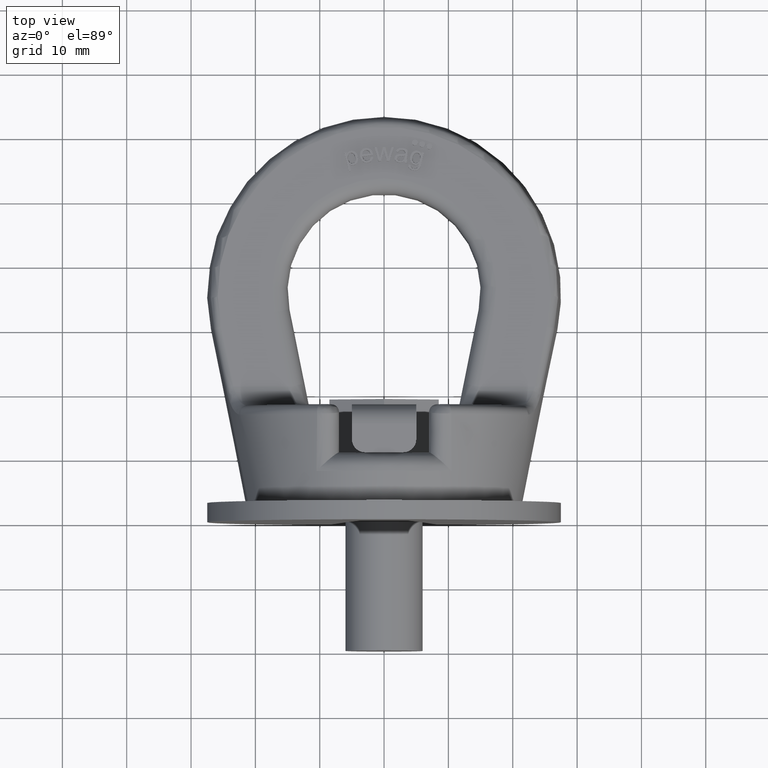
[diagram: clean part render]
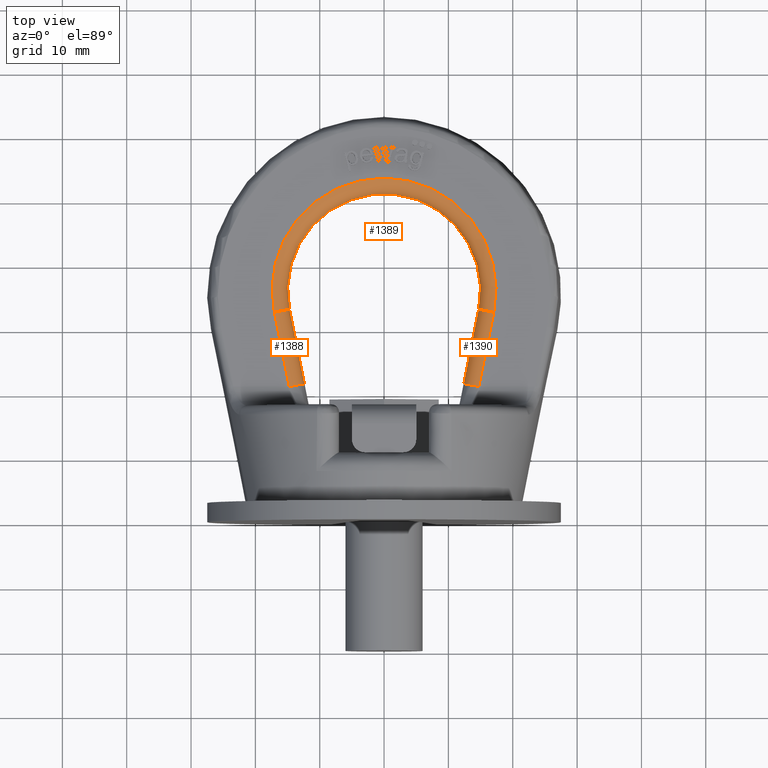
[diagram: same view with one multi-face feature highlighted, each face labeled with its STEP entity id]
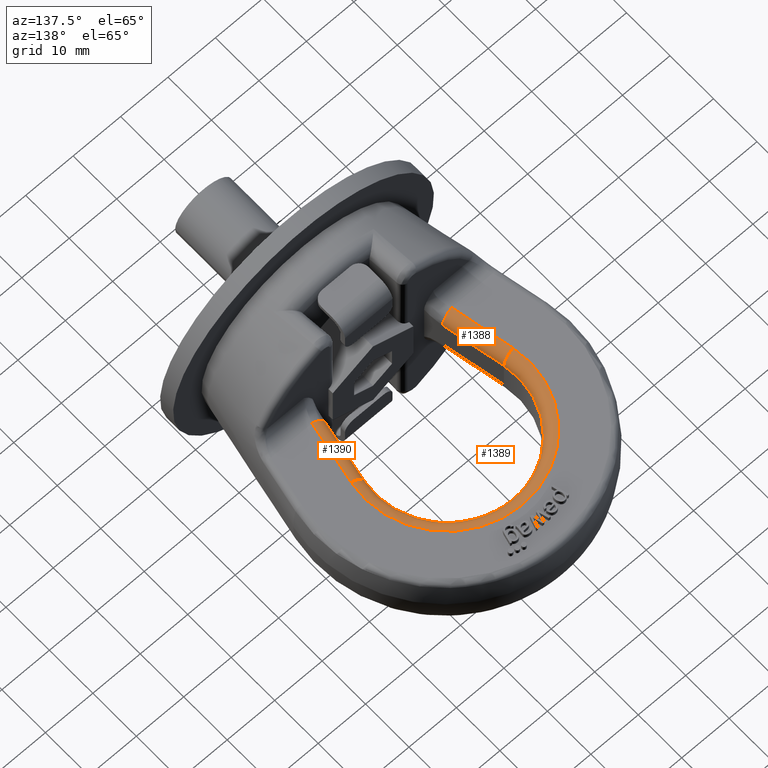
[diagram: same view with one multi-face feature highlighted, each face labeled with its STEP entity id]
A machine part, top view. The highlighted faces form ONE feature: a constant-radius fillet chain: 3 tangent blend faces with common blend radius 2.4 mm. The faces share edges in the B-rep.
A second angle (auxiliary view) of the same feature is appended — it is thin or edge-on in the first view.
Their STEP definitions:
[1] entity #1390 (Cylinder):
#1100=CYLINDRICAL_SURFACE('',#5249,2.4);
#1165=FACE_OUTER_BOUND('',#1912,.T.);
#1390=ADVANCED_FACE('',(#1165),#1100,.T.);
#1743=CIRCLE('',#5246,2.4);
#1744=CIRCLE('',#5248,2.4);
#1912=EDGE_LOOP('',(#3025,#3026,#3027,#3028));
#2145=LINE('',#6454,#2425);
#2196=LINE('',#6926,#2476);
#2425=VECTOR('',#5457,1.);
#2476=VECTOR('',#5574,1.);
#3025=ORIENTED_EDGE('',*,*,#4495,.F.);
#3026=ORIENTED_EDGE('',*,*,#4450,.F.);
#3027=ORIENTED_EDGE('',*,*,#4496,.F.);
#3028=ORIENTED_EDGE('',*,*,#4343,.F.);
#3954=VERTEX_POINT('',#6453);
#3955=VERTEX_POINT('',#6455);
#4049=VERTEX_POINT('',#6910);
#4054=VERTEX_POINT('',#6925);
#4343=EDGE_CURVE('',#3954,#3955,#2145,.T.);
#4450=EDGE_CURVE('',#4054,#4049,#2196,.T.);
#4495=EDGE_CURVE('',#4049,#3954,#1743,.T.);
#4496=EDGE_CURVE('',#3955,#4054,#1744,.T.);
#5246=AXIS2_PLACEMENT_3D('',#7258,#5682,#5683);
#5248=AXIS2_PLACEMENT_3D('',#7260,#5686,#5687);
#5249=AXIS2_PLACEMENT_3D('',#7261,#5688,#5689);
#5457=DIRECTION('',(-0.19766821154562,-0.980268982547319,1.54590510617885E-16));
#5574=DIRECTION('',(0.19766821154562,0.980268982547319,-1.54590510617885E-16));
#5682=DIRECTION('',(0.197668211545619,0.980268982547319,0.));
#5683=DIRECTION('',(0.980268982547319,-0.197668211545619,0.));
#5686=DIRECTION('',(-0.197668211545621,-0.980268982547319,0.));
#5687=DIRECTION('',(0.980268982547319,-0.197668211545621,0.));
#5688=DIRECTION('',(0.19766821154562,0.980268982547319,-1.54590510617885E-16));
#5689=DIRECTION('',(-0.980268982547319,0.197668211545619,0.));
#6453=CARTESIAN_POINT('',(17.0566802963233,32.5605731191062,6.00000000000001));
#6454=CARTESIAN_POINT('',(14.6298644042528,20.5255962922905,6.00000000000001));
#6455=CARTESIAN_POINT('',(14.7255264461241,21.,6.00000000000001));
#6910=CARTESIAN_POINT('',(14.7040347382098,33.0349768268157,3.60000000000001));
#6925=CARTESIAN_POINT('',(12.3728808880105,21.4744037077095,3.60000000000001));
#6926=CARTESIAN_POINT('',(14.7040347382098,33.0349768268157,3.60000000000001));
#7258=CARTESIAN_POINT('',(17.0566802963233,32.5605731191062,3.60000000000001));
#7260=CARTESIAN_POINT('',(14.7255264461241,21.,3.60000000000001));
#7261=CARTESIAN_POINT('',(26.3750966130934,78.7721233242049,3.6));
[2] entity #1389 (Torus):
#1054=TOROIDAL_SURFACE('',#5247,17.4,2.4);
#1164=FACE_OUTER_BOUND('',#1911,.T.);
#1389=ADVANCED_FACE('',(#1164),#1054,.T.);
#1707=CIRCLE('',#5167,17.4);
#1725=CIRCLE('',#5194,15.);
#1742=CIRCLE('',#5244,2.4);
#1743=CIRCLE('',#5246,2.4);
#1911=EDGE_LOOP('',(#3021,#3022,#3023,#3024));
#3021=ORIENTED_EDGE('',*,*,#4494,.F.);
#3022=ORIENTED_EDGE('',*,*,#4442,.F.);
#3023=ORIENTED_EDGE('',*,*,#4495,.T.);
#3024=ORIENTED_EDGE('',*,*,#4342,.F.);
#3953=VERTEX_POINT('',#6452);
#3954=VERTEX_POINT('',#6453);
#4049=VERTEX_POINT('',#6910);
#4050=VERTEX_POINT('',#6912);
#4342=EDGE_CURVE('',#3953,#3954,#1707,.T.);
#4442=EDGE_CURVE('',#4049,#4050,#1725,.T.);
#4494=EDGE_CURVE('',#4050,#3953,#1742,.T.);
#4495=EDGE_CURVE('',#4049,#3954,#1743,.T.);
#5167=AXIS2_PLACEMENT_3D('',#6451,#5455,#5456);
#5194=AXIS2_PLACEMENT_3D('',#6911,#5557,#5558);
#5244=AXIS2_PLACEMENT_3D('',#7256,#5678,#5679);
#5246=AXIS2_PLACEMENT_3D('',#7258,#5682,#5683);
#5247=AXIS2_PLACEMENT_3D('',#7259,#5684,#5685);
#5455=DIRECTION('',(0.,-1.5770213417971E-16,-1.));
#5456=DIRECTION('',(0.,1.,-1.4954512723938E-16));
#5557=DIRECTION('',(0.,1.5770213417971E-16,1.));
#5558=DIRECTION('',(0.,1.,-1.44560289664734E-16));
#5678=DIRECTION('',(0.197668211545619,-0.980268982547319,0.));
#5679=DIRECTION('',(-0.980268982547319,-0.197668211545619,0.));
#5682=DIRECTION('',(0.197668211545619,0.980268982547319,0.));
#5683=DIRECTION('',(0.980268982547319,-0.197668211545619,0.));
#5684=DIRECTION('',(0.,-1.5770213417971E-16,-1.));
#5685=DIRECTION('',(0.,1.,-1.53321519341384E-16));
#6451=CARTESIAN_POINT('',(0.,36.,6.00000000000001));
#6452=CARTESIAN_POINT('',(-17.0566802963234,32.5605731191062,6.00000000000001));
#6453=CARTESIAN_POINT('',(17.0566802963233,32.5605731191062,6.00000000000001));
#6910=CARTESIAN_POINT('',(14.7040347382098,33.0349768268157,3.60000000000001));
#6911=CARTESIAN_POINT('',(0.,36.,3.60000000000001));
#6912=CARTESIAN_POINT('',(-14.7040347382098,33.0349768268157,3.60000000000001));
#7256=CARTESIAN_POINT('',(-17.0566802963234,32.5605731191062,3.60000000000001));
#7258=CARTESIAN_POINT('',(17.0566802963233,32.5605731191062,3.60000000000001));
#7259=CARTESIAN_POINT('',(0.,36.,3.60000000000001));
[3] entity #1388 (Cylinder):
#1099=CYLINDRICAL_SURFACE('',#5245,2.4);
#1163=FACE_OUTER_BOUND('',#1910,.T.);
#1388=ADVANCED_FACE('',(#1163),#1099,.T.);
#1741=CIRCLE('',#5243,2.4);
#1742=CIRCLE('',#5244,2.4);
#1910=EDGE_LOOP('',(#3017,#3018,#3019,#3020));
#2148=LINE('',#6472,#2428);
#2194=LINE('',#6917,#2474);
#2428=VECTOR('',#5462,1.);
#2474=VECTOR('',#5564,1.);
#3017=ORIENTED_EDGE('',*,*,#4493,.F.);
#3018=ORIENTED_EDGE('',*,*,#4445,.F.);
#3019=ORIENTED_EDGE('',*,*,#4494,.T.);
#3020=ORIENTED_EDGE('',*,*,#4349,.F.);
#3953=VERTEX_POINT('',#6452);
#3960=VERTEX_POINT('',#6471);
#4050=VERTEX_POINT('',#6912);
#4052=VERTEX_POINT('',#6918);
#4349=EDGE_CURVE('',#3960,#3953,#2148,.T.);
#4445=EDGE_CURVE('',#4050,#4052,#2194,.T.);
#4493=EDGE_CURVE('',#4052,#3960,#1741,.T.);
#4494=EDGE_CURVE('',#4050,#3953,#1742,.T.);
#5243=AXIS2_PLACEMENT_3D('',#7237,#5676,#5677);
#5244=AXIS2_PLACEMENT_3D('',#7256,#5678,#5679);
#5245=AXIS2_PLACEMENT_3D('',#7257,#5680,#5681);
#5462=DIRECTION('',(-0.19766821154562,0.980268982547319,-1.54590510617885E-16));
#5564=DIRECTION('',(0.19766821154562,-0.980268982547319,1.54590510617885E-16));
#5676=DIRECTION('',(0.197668211545619,-0.980268982547319,-1.41707968066394E-15));
#5677=DIRECTION('',(-0.980268982547319,-0.197668211545619,0.));
#5678=DIRECTION('',(0.197668211545619,-0.980268982547319,0.));
#5679=DIRECTION('',(-0.980268982547319,-0.197668211545619,0.));
#5680=DIRECTION('',(0.19766821154562,-0.980268982547319,1.54590510617885E-16));
#5681=DIRECTION('',(0.980268982547319,0.197668211545619,0.));
#6452=CARTESIAN_POINT('',(-17.0566802963234,32.5605731191062,6.00000000000001));
#6471=CARTESIAN_POINT('',(-14.7255264461241,21.,6.00000000000001));
#6472=CARTESIAN_POINT('',(-17.0566802963234,32.5605731191062,6.00000000000001));
#6912=CARTESIAN_POINT('',(-14.7040347382098,33.0349768268157,3.60000000000001));
#6917=CARTESIAN_POINT('',(-12.2772188461393,21.,3.60000000000001));
#6918=CARTESIAN_POINT('',(-12.3728808880105,21.4744037077095,3.60000000000001));
#7237=CARTESIAN_POINT('',(-14.7255264461241,21.,3.60000000000001));
#7256=CARTESIAN_POINT('',(-17.0566802963234,32.5605731191062,3.60000000000001));
#7257=CARTESIAN_POINT('',(-22.0770972089725,57.4576414966899,3.6));